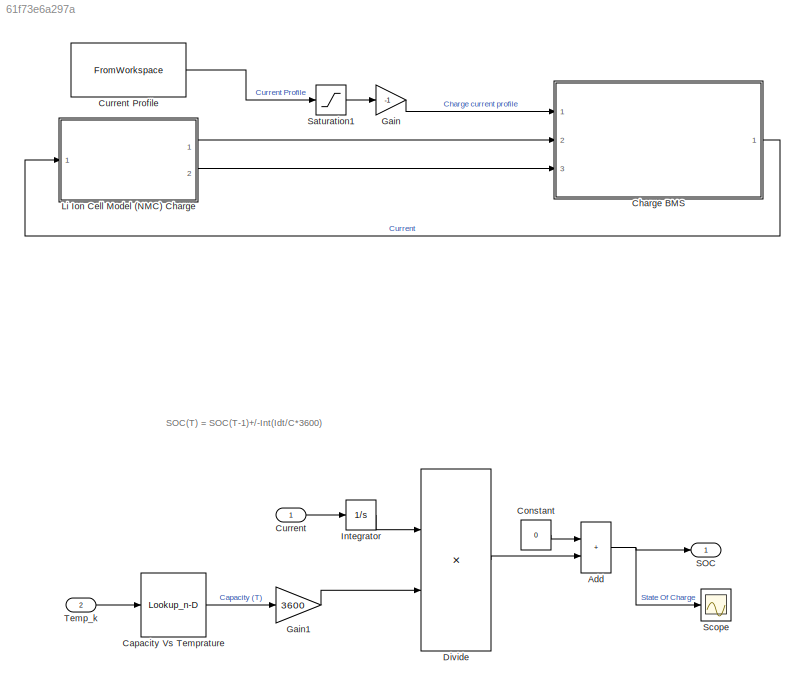
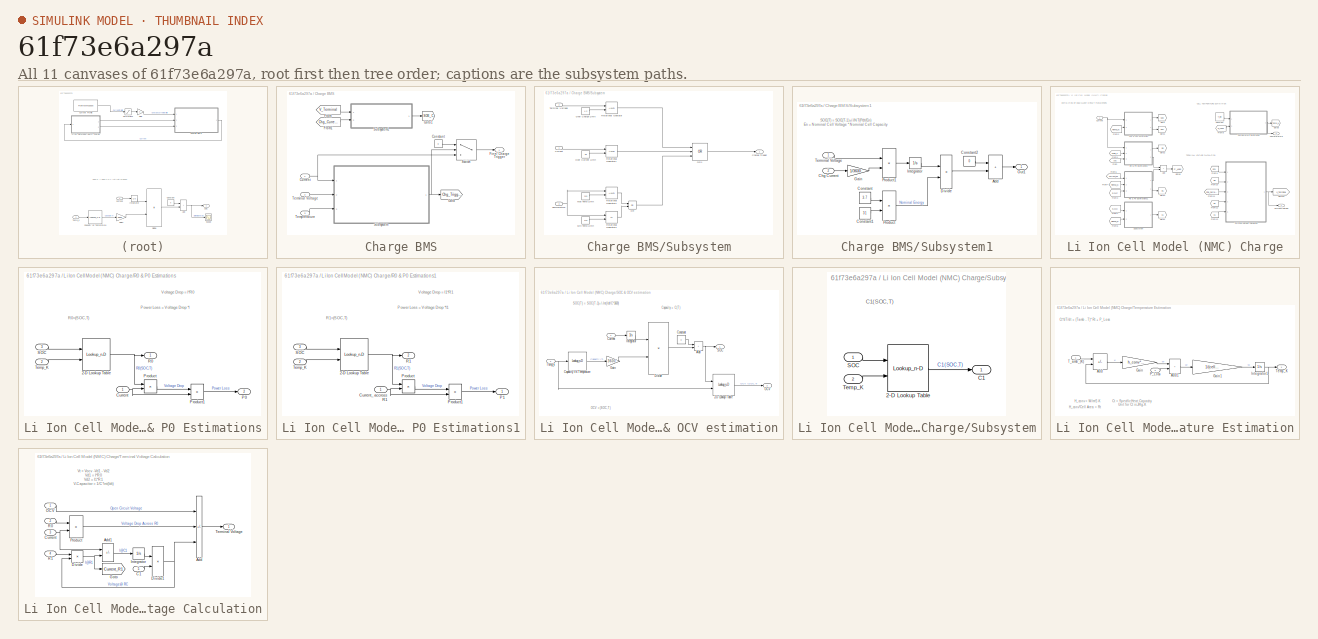
[diagram: thumbnail index - all 11 canvases of the model, root first then tree order]
MODEL slx_61f73e6a297a
KIND model
CONFIG AbsTol = auto
CONFIG EnableMultiTasking = off
CONFIG FixedStep = auto
CONFIG MaxStep = auto
CONFIG MinStep = auto
CONFIG RelTol = 1e-3
CONFIG SampleTimeConstraint = Unconstrained
CONFIG SolverName = VariableStepAuto
CONFIG StartTime = 0.0
CONFIG StopTime = 1180
BLOCK [Sum] Add
  IconShape = rectangular
  Ports = [2, 1]
BLOCK [Lookup_n-D] Capacity Vs Temprature
  BreakpointsForDimension1 = Temperature_LUT
  InputPortMap = u0
  InternalRulePriority = Speed
  NumberOfTableDimensions = 1
  Ports = [1, 1]
  RndMeth = Simplest
  Table = Capacity_LUT
BLOCK [SubSystem] Charge BMS
  Ports = [3, 1]
  RequestExecContextInheritance = off
BLOCK [Constant] Charge BMS/Constant
  Value = 0
BLOCK [Inport] Charge BMS/Current
BLOCK [Outport] Charge BMS/Final Charge Trigger
BLOCK [From] Charge BMS/From
  GotoTag = V_Terminal
  TagVisibility = global
BLOCK [From] Charge BMS/From1
  GotoTag = Chg_Current
  TagVisibility = global
BLOCK [Goto] Charge BMS/Goto
  GotoTag = Chg_Trigger
  TagVisibility = global
BLOCK [Goto] Charge BMS/Goto1
  GotoTag = SOE_C
  TagVisibility = global
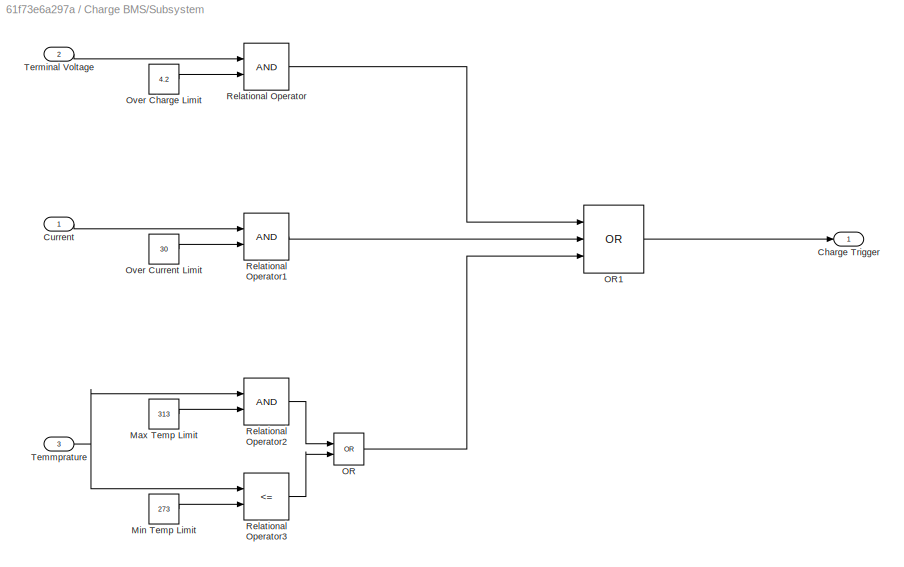
BLOCK [SubSystem] Charge BMS/Subsystem
  Ports = [3, 1]
  RequestExecContextInheritance = off
BLOCK [Outport] Charge BMS/Subsystem/Charge Trigger
BLOCK [Inport] Charge BMS/Subsystem/Current
BLOCK [Constant] Charge BMS/Subsystem/Max Temp Limit
  Value = 313
BLOCK [Constant] Charge BMS/Subsystem/Min Temp Limit
  Value = 273
BLOCK [Logic] Charge BMS/Subsystem/OR
  AllPortsSameDT = off
  IconShape = distinctive
  Operator = OR
  OutDataTypeStr = boolean
  Ports = [2, 1]
BLOCK [Logic] Charge BMS/Subsystem/OR1
  AllPortsSameDT = off
  IconShape = distinctive
  Inputs = 3
  Operator = OR
  OutDataTypeStr = boolean
  Ports = [3, 1]
BLOCK [Constant] Charge BMS/Subsystem/Over Charge Limit
  Value = 4.2
BLOCK [Constant] Charge BMS/Subsystem/Over Current Limit
  Value = 30
BLOCK [RelationalOperator] Charge BMS/Subsystem/Relational Operator
  InputSameDT = off
  OutDataTypeStr = boolean
  Ports = [2, 1]
  RndMeth = Simplest
BLOCK [RelationalOperator] Charge BMS/Subsystem/Relational Operator1
  InputSameDT = off
  OutDataTypeStr = boolean
  Ports = [2, 1]
  RndMeth = Simplest
BLOCK [RelationalOperator] Charge BMS/Subsystem/Relational Operator2
  InputSameDT = off
  OutDataTypeStr = boolean
  Ports = [2, 1]
  RndMeth = Simplest
BLOCK [RelationalOperator] Charge BMS/Subsystem/Relational Operator3
  InputSameDT = off
  Operator = <=
  OutDataTypeStr = boolean
  Ports = [2, 1]
  RndMeth = Simplest
BLOCK [Inport] Charge BMS/Subsystem/Temmprature
  Port = 3
BLOCK [Inport] Charge BMS/Subsystem/Terminal Voltage
  Port = 2
BLOCK [SubSystem] Charge BMS/Subsystem1
  Ports = [2, 1]
  RequestExecContextInheritance = off
BLOCK [Sum] Charge BMS/Subsystem1/Add
  IconShape = rectangular
  Ports = [2, 1]
BLOCK [Inport] Charge BMS/Subsystem1/Chg Current
  Port = 2
BLOCK [Constant] Charge BMS/Subsystem1/Constant
  Value = 3.7
BLOCK [Constant] Charge BMS/Subsystem1/Constant1
  Value = 31
BLOCK [Constant] Charge BMS/Subsystem1/Constant2
  Value = 0
BLOCK [Product] Charge BMS/Subsystem1/Divide
  Inputs = */
  Ports = [2, 1]
BLOCK [Gain] Charge BMS/Subsystem1/Gain
  Gain = 1/3600
BLOCK [Integrator] Charge BMS/Subsystem1/Integrator
  Ports = [1, 1]
BLOCK [Outport] Charge BMS/Subsystem1/Out1
BLOCK [Product] Charge BMS/Subsystem1/Product
  Ports = [2, 1]
BLOCK [Product] Charge BMS/Subsystem1/Product1
  Ports = [2, 1]
BLOCK [Inport] Charge BMS/Subsystem1/Terminal Voltage
BLOCK [Switch] Charge BMS/Switch
  Criteria = u2 ~= 0
  InputSameDT = off
  SaturateOnIntegerOverflow = off
BLOCK [Inport] Charge BMS/Temprerature
  Port = 3
BLOCK [Inport] Charge BMS/Terminal Voltage
  Port = 2
BLOCK [Constant] Constant
  Value = 0
BLOCK [Inport] Current
BLOCK [FromWorkspace] Current Profile
  VariableName = Current_Profile
BLOCK [Product] Divide
  Inputs = */
  Ports = [2, 1]
BLOCK [Gain] Gain
  Gain = -1
BLOCK [Gain] Gain1
  Gain = 3600
BLOCK [Integrator] Integrator
  Ports = [1, 1]
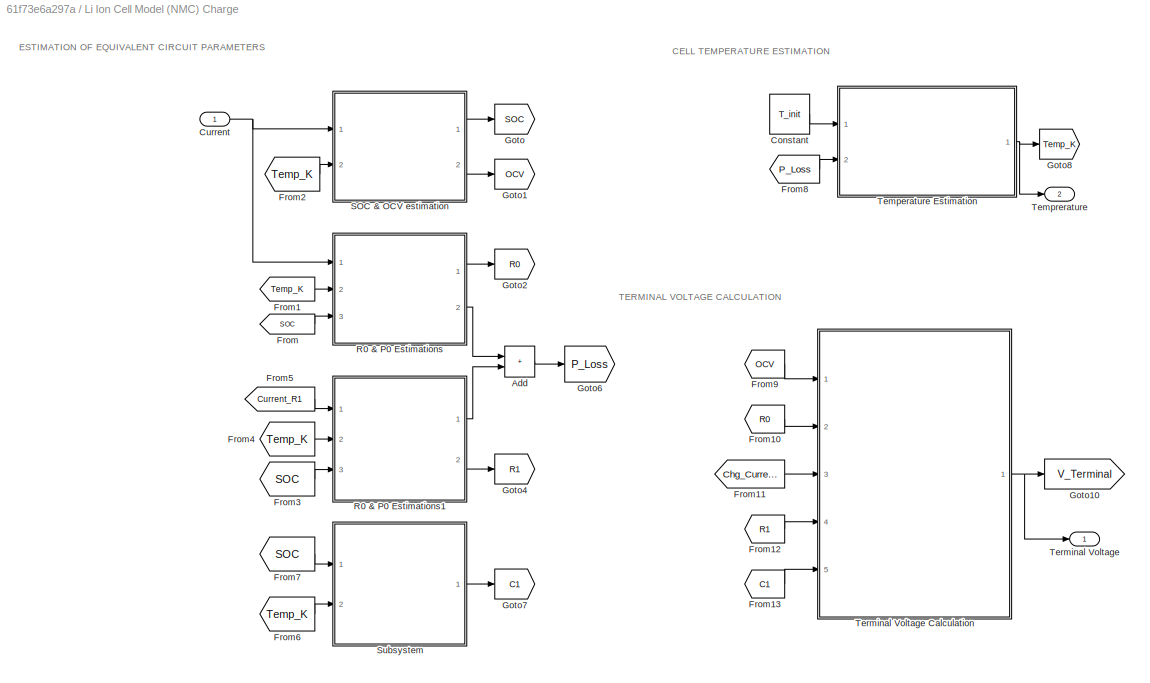
BLOCK [SubSystem] Li Ion Cell Model (NMC) Charge
  Ports = [1, 2]
  RequestExecContextInheritance = off
BLOCK [Sum] Li Ion Cell Model (NMC) Charge/Add
  IconShape = rectangular
  Ports = [2, 1]
BLOCK [Constant] Li Ion Cell Model (NMC) Charge/Constant
  Value = T_init
BLOCK [Inport] Li Ion Cell Model (NMC) Charge/Current
BLOCK [From] Li Ion Cell Model (NMC) Charge/From
  GotoTag = SOC
  TagVisibility = global
BLOCK [From] Li Ion Cell Model (NMC) Charge/From1
  GotoTag = Temp_K
  TagVisibility = global
BLOCK [From] Li Ion Cell Model (NMC) Charge/From10
  GotoTag = R0
  TagVisibility = global
BLOCK [From] Li Ion Cell Model (NMC) Charge/From11
  GotoTag = Chg_Current
  TagVisibility = global
BLOCK [From] Li Ion Cell Model (NMC) Charge/From12
  GotoTag = R1
  TagVisibility = global
BLOCK [From] Li Ion Cell Model (NMC) Charge/From13
  GotoTag = C1
  TagVisibility = global
BLOCK [From] Li Ion Cell Model (NMC) Charge/From2
  GotoTag = Temp_K
  TagVisibility = global
BLOCK [From] Li Ion Cell Model (NMC) Charge/From3
  GotoTag = SOC
  TagVisibility = global
BLOCK [From] Li Ion Cell Model (NMC) Charge/From4
  GotoTag = Temp_K
  TagVisibility = global
BLOCK [From] Li Ion Cell Model (NMC) Charge/From5
  GotoTag = Current_R1
  TagVisibility = global
BLOCK [From] Li Ion Cell Model (NMC) Charge/From6
  GotoTag = Temp_K
  TagVisibility = global
BLOCK [From] Li Ion Cell Model (NMC) Charge/From7
  GotoTag = SOC
  TagVisibility = global
BLOCK [From] Li Ion Cell Model (NMC) Charge/From8
  GotoTag = P_Loss
  TagVisibility = global
BLOCK [From] Li Ion Cell Model (NMC) Charge/From9
  GotoTag = OCV
  TagVisibility = global
BLOCK [Goto] Li Ion Cell Model (NMC) Charge/Goto
  GotoTag = SOC
  TagVisibility = global
BLOCK [Goto] Li Ion Cell Model (NMC) Charge/Goto1
  GotoTag = OCV
  TagVisibility = global
BLOCK [Goto] Li Ion Cell Model (NMC) Charge/Goto10
  GotoTag = V_Terminal
  TagVisibility = global
BLOCK [Goto] Li Ion Cell Model (NMC) Charge/Goto2
  GotoTag = R0
  TagVisibility = global
BLOCK [Goto] Li Ion Cell Model (NMC) Charge/Goto4
  GotoTag = R1
  TagVisibility = global
BLOCK [Goto] Li Ion Cell Model (NMC) Charge/Goto6
  GotoTag = P_Loss
  TagVisibility = global
BLOCK [Goto] Li Ion Cell Model (NMC) Charge/Goto7
  GotoTag = C1
  TagVisibility = global
BLOCK [Goto] Li Ion Cell Model (NMC) Charge/Goto8
  GotoTag = Temp_K
  TagVisibility = global
BLOCK [SubSystem] Li Ion Cell Model (NMC) Charge/R0 & P0 Estimations
  Ports = [3, 2]
  RequestExecContextInheritance = off
BLOCK [Lookup_n-D] Li Ion Cell Model (NMC) Charge/R0 & P0 Estimations/2-D Lookup Table
  BreakpointsForDimension1 = SOC_LUT
  BreakpointsForDimension2 = Temperature_LUT
  InputPortMap = u0,u1
  InternalRulePriority = Speed
  Ports = [2, 1]
  RndMeth = Simplest
  Table = R0_LUT
BLOCK [Inport] Li Ion Cell Model (NMC) Charge/R0 & P0 Estimations/Current
BLOCK [Outport] Li Ion Cell Model (NMC) Charge/R0 & P0 Estimations/P0
  Port = 2
BLOCK [Product] Li Ion Cell Model (NMC) Charge/R0 & P0 Estimations/Product
  Ports = [2, 1]
BLOCK [Product] Li Ion Cell Model (NMC) Charge/R0 & P0 Estimations/Product1
  Ports = [2, 1]
BLOCK [Outport] Li Ion Cell Model (NMC) Charge/R0 & P0 Estimations/R0
BLOCK [Inport] Li Ion Cell Model (NMC) Charge/R0 & P0 Estimations/SOC
  Port = 3
BLOCK [Inport] Li Ion Cell Model (NMC) Charge/R0 & P0 Estimations/Temp_K
  Port = 2
BLOCK [SubSystem] Li Ion Cell Model (NMC) Charge/R0 & P0 Estimations1
  Ports = [3, 2]
  RequestExecContextInheritance = off
BLOCK [Lookup_n-D] Li Ion Cell Model (NMC) Charge/R0 & P0 Estimations1/2-D Lookup Table
  BreakpointsForDimension1 = SOC_LUT
  BreakpointsForDimension2 = Temperature_LUT
  InputPortMap = u0,u1
  InternalRulePriority = Speed
  Ports = [2, 1]
  RndMeth = Simplest
  Table = R1_LUT
BLOCK [Inport] Li Ion Cell Model (NMC) Charge/R0 & P0 Estimations1/Current_ accross R1
BLOCK [Outport] Li Ion Cell Model (NMC) Charge/R0 & P0 Estimations1/P1
BLOCK [Product] Li Ion Cell Model (NMC) Charge/R0 & P0 Estimations1/Product
  Ports = [2, 1]
BLOCK [Product] Li Ion Cell Model (NMC) Charge/R0 & P0 Estimations1/Product1
  Ports = [2, 1]
BLOCK [Outport] Li Ion Cell Model (NMC) Charge/R0 & P0 Estimations1/R1
  Port = 2
BLOCK [Inport] Li Ion Cell Model (NMC) Charge/R0 & P0 Estimations1/SOC
  Port = 3
BLOCK [Inport] Li Ion Cell Model (NMC) Charge/R0 & P0 Estimations1/Temp_K
  Port = 2
BLOCK [SubSystem] Li Ion Cell Model (NMC) Charge/SOC & OCV estimation
  Ports = [2, 2]
  RequestExecContextInheritance = off
BLOCK [Lookup_n-D] Li Ion Cell Model (NMC) Charge/SOC & OCV estimation/2-D Lookup Table
  BreakpointsForDimension1 = SOC_LUT
  BreakpointsForDimension2 = Temperature_LUT
  InputPortMap = u0,u1
  InternalRulePriority = Speed
  Ports = [2, 1]
  RndMeth = Simplest
  Table = Em_LUT
BLOCK [Sum] Li Ion Cell Model (NMC) Charge/SOC & OCV estimation/Add
  IconShape = rectangular
  Ports = [2, 1]
BLOCK [Lookup_n-D] Li Ion Cell Model (NMC) Charge/SOC & OCV estimation/Capacity Vs Temprature
  BreakpointsForDimension1 = Temperature_LUT
  InputPortMap = u0
  InternalRulePriority = Speed
  NumberOfTableDimensions = 1
  Ports = [1, 1]
  RndMeth = Simplest
  Table = Capacity_LUT
BLOCK [Constant] Li Ion Cell Model (NMC) Charge/SOC & OCV estimation/Constant
  Value = 0
BLOCK [Inport] Li Ion Cell Model (NMC) Charge/SOC & OCV estimation/Current
BLOCK [Product] Li Ion Cell Model (NMC) Charge/SOC & OCV estimation/Divide
  Inputs = */
  Ports = [2, 1]
BLOCK [Gain] Li Ion Cell Model (NMC) Charge/SOC & OCV estimation/Gain
  Gain = 3600
BLOCK [Integrator] Li Ion Cell Model (NMC) Charge/SOC & OCV estimation/Integrator
  Ports = [1, 1]
BLOCK [Outport] Li Ion Cell Model (NMC) Charge/SOC & OCV estimation/OCV
  Port = 2
BLOCK [Outport] Li Ion Cell Model (NMC) Charge/SOC & OCV estimation/SOC
BLOCK [Inport] Li Ion Cell Model (NMC) Charge/SOC & OCV estimation/Temp_k
  Port = 2
BLOCK [SubSystem] Li Ion Cell Model (NMC) Charge/Subsystem
  Ports = [2, 1]
  RequestExecContextInheritance = off
BLOCK [Lookup_n-D] Li Ion Cell Model (NMC) Charge/Subsystem/2-D Lookup Table
  BreakpointsForDimension1 = SOC_LUT
  BreakpointsForDimension2 = Temperature_LUT
  InputPortMap = u0,u1
  InternalRulePriority = Speed
  Ports = [2, 1]
  RndMeth = Simplest
  Table = C1_LUT
BLOCK [Outport] Li Ion Cell Model (NMC) Charge/Subsystem/C1
BLOCK [Inport] Li Ion Cell Model (NMC) Charge/Subsystem/SOC
BLOCK [Inport] Li Ion Cell Model (NMC) Charge/Subsystem/Temp_K
  Port = 2
BLOCK [SubSystem] Li Ion Cell Model (NMC) Charge/Temperature Estimation
  Ports = [2, 1]
  RequestExecContextInheritance = off
BLOCK [Sum] Li Ion Cell Model (NMC) Charge/Temperature Estimation/Add
  IconShape = rectangular
  Inputs = +-
  Ports = [2, 1]
BLOCK [Sum] Li Ion Cell Model (NMC) Charge/Temperature Estimation/Add1
  IconShape = rectangular
  Ports = [2, 1]
BLOCK [Gain] Li Ion Cell Model (NMC) Charge/Temperature Estimation/Gain
  Gain = h_conv*cell_area
BLOCK [Gain] Li Ion Cell Model (NMC) Charge/Temperature Estimation/Gain1
  Gain = 1/(cell_Cp_heat*cell_mass)
BLOCK [Integrator] Li Ion Cell Model (NMC) Charge/Temperature Estimation/Integrator1
  InitialCondition = 293.15
  Ports = [1, 1]
BLOCK [Inport] Li Ion Cell Model (NMC) Charge/Temperature Estimation/P_Loss
  Port = 2
BLOCK [Inport] Li Ion Cell Model (NMC) Charge/Temperature Estimation/T_amb_(K)
BLOCK [Outport] Li Ion Cell Model (NMC) Charge/Temperature Estimation/Temp_K
BLOCK [Outport] Li Ion Cell Model (NMC) Charge/Temprerature
  Port = 2
BLOCK [Outport] Li Ion Cell Model (NMC) Charge/Terminal Voltage
BLOCK [SubSystem] Li Ion Cell Model (NMC) Charge/Terminal Voltage Calculation
  Ports = [5, 1]
  RequestExecContextInheritance = off
BLOCK [Sum] Li Ion Cell Model (NMC) Charge/Terminal Voltage Calculation/Add
  IconShape = rectangular
  Inputs = +--
  Ports = [3, 1]
BLOCK [Sum] Li Ion Cell Model (NMC) Charge/Terminal Voltage Calculation/Add1
  IconShape = rectangular
  Inputs = +-
  Ports = [2, 1]
BLOCK [Inport] Li Ion Cell Model (NMC) Charge/Terminal Voltage Calculation/C1
  Port = 5
BLOCK [Inport] Li Ion Cell Model (NMC) Charge/Terminal Voltage Calculation/Current
  Port = 3
BLOCK [Product] Li Ion Cell Model (NMC) Charge/Terminal Voltage Calculation/Divide
  Inputs = /*
  Ports = [2, 1]
BLOCK [Product] Li Ion Cell Model (NMC) Charge/Terminal Voltage Calculation/Divide1
  Inputs = */
  Ports = [2, 1]
BLOCK [Goto] Li Ion Cell Model (NMC) Charge/Terminal Voltage Calculation/Goto
  GotoTag = Current_R1
  TagVisibility = global
BLOCK [Integrator] Li Ion Cell Model (NMC) Charge/Terminal Voltage Calculation/Integrator
  Ports = [1, 1]
BLOCK [Inport] Li Ion Cell Model (NMC) Charge/Terminal Voltage Calculation/OCV
BLOCK [Product] Li Ion Cell Model (NMC) Charge/Terminal Voltage Calculation/Product
  Ports = [2, 1]
BLOCK [Inport] Li Ion Cell Model (NMC) Charge/Terminal Voltage Calculation/R0
  Port = 2
BLOCK [Inport] Li Ion Cell Model (NMC) Charge/Terminal Voltage Calculation/R1
  Port = 4
BLOCK [Outport] Li Ion Cell Model (NMC) Charge/Terminal Voltage Calculation/Terminal Voltage
BLOCK [Outport] SOC
BLOCK [Saturate] Saturation1
  LowerLimit = -inf
  UpperLimit = 0
BLOCK [Scope] Scope
  Floating = off
  NumInputPorts = 1
  Ports = [1]
  ScopeSpecificationString = Simulink.scopes.TimeScopeBlockCfg('CurrentConfiguration', extmgr.ConfigurationSet(extmgr.Configuration('Core','General UI',true),extmgr.Configuration('Core','Source UI',true),extmgr.Configuration('Sources','WiredSimulink',true),extmgr.Configuration('Visuals','Time Domain',true),extmgr.Configuration('Tools','Plot Navigation',true),extmgr.Configuration('Tools','Measurements',true)),'Version','2021a'...<+1ch>
BLOCK [Inport] Temp_k
  Port = 2
ANNOTATION (root): SOC(T) = SOC(T-1)+/-Int(Idt/C*3600)
ANNOTATION Charge BMS/Subsystem1: SOE(T) = SOE(T-1)+/-INT(Pdt/En) En = Nominal Cell Voltage * Nominal Cell Capacity
ANNOTATION Li Ion Cell Model (NMC) Charge: CELL TEMPERATURE ESTIMATION
ANNOTATION Li Ion Cell Model (NMC) Charge: ESTIMATION OF EQUIVALENT CIRCUIT PARAMETERS
ANNOTATION Li Ion Cell Model (NMC) Charge: TERMINAL VOLTAGE CALCULATION
ANNOTATION Li Ion Cell Model (NMC) Charge/R0 & P0 Estimations: Power Loss = Voltage Drop *I
ANNOTATION Li Ion Cell Model (NMC) Charge/R0 & P0 Estimations: R0=(SOC,T)
ANNOTATION Li Ion Cell Model (NMC) Charge/R0 & P0 Estimations: Voltage Drop = I*R0
ANNOTATION Li Ion Cell Model (NMC) Charge/R0 & P0 Estimations1: Power Loss = Voltage Drop *I1
ANNOTATION Li Ion Cell Model (NMC) Charge/R0 & P0 Estimations1: R1=(SOC,T)
ANNOTATION Li Ion Cell Model (NMC) Charge/R0 & P0 Estimations1: Voltage Drop = I1*R1
ANNOTATION Li Ion Cell Model (NMC) Charge/SOC & OCV estimation: OCV =( SOC ,T)
ANNOTATION Li Ion Cell Model (NMC) Charge/SOC & OCV estimation: SOC(T) = SOC(T-1)+/-Int(Idt/C*3600)
ANNOTATION Li Ion Cell Model (NMC) Charge/SOC & OCV estimation: Capacity = C(T)
ANNOTATION Li Ion Cell Model (NMC) Charge/Subsystem: C1(SOC,T)
ANNOTATION Li Ion Cell Model (NMC) Charge/Temperature Estimation: Ct*dT/dt = (Tamb - T)* Rt + P_Loss
ANNOTATION Li Ion Cell Model (NMC) Charge/Temperature Estimation: Ct = Specific Heat Capacity Unit for Ct is J/Kg-K
ANNOTATION Li Ion Cell Model (NMC) Charge/Temperature Estimation: H_conv = W/m^2-K
ANNOTATION Li Ion Cell Model (NMC) Charge/Temperature Estimation: H_conv*Cell Area = Rt
ANNOTATION Li Ion Cell Model (NMC) Charge/Terminal Voltage Calculation: Vt = Vocv -Vd1 - Vd2 Vd1 = I*R0 Vd2 = I1*R1 V-Capacitor = 1/C*int(Idt)
NET Add:1 -> SOC:1, Scope:1
LINE Capacity Vs Temprature:1 -> Gain1:1
LINE Charge BMS/Constant:1 -> Charge BMS/Switch:1
NET Charge BMS/Current:1 -> Charge BMS/Subsystem:1, Charge BMS/Switch:3
LINE Charge BMS/From1:1 -> Charge BMS/Subsystem1:2
LINE Charge BMS/From:1 -> Charge BMS/Subsystem1:1
LINE Charge BMS/Subsystem/Current:1 -> Charge BMS/Subsystem/Relational Operator1:1
LINE Charge BMS/Subsystem/Max Temp Limit:1 -> Charge BMS/Subsystem/Relational Operator2:2
LINE Charge BMS/Subsystem/Min Temp Limit:1 -> Charge BMS/Subsystem/Relational Operator3:2
LINE Charge BMS/Subsystem/OR1:1 -> Charge BMS/Subsystem/Charge Trigger:1
LINE Charge BMS/Subsystem/OR:1 -> Charge BMS/Subsystem/OR1:3
LINE Charge BMS/Subsystem/Over Charge Limit:1 -> Charge BMS/Subsystem/Relational Operator:2
LINE Charge BMS/Subsystem/Over Current Limit:1 -> Charge BMS/Subsystem/Relational Operator1:2
LINE Charge BMS/Subsystem/Relational Operator1:1 -> Charge BMS/Subsystem/OR1:2
LINE Charge BMS/Subsystem/Relational Operator2:1 -> Charge BMS/Subsystem/OR:1
LINE Charge BMS/Subsystem/Relational Operator3:1 -> Charge BMS/Subsystem/OR:2
LINE Charge BMS/Subsystem/Relational Operator:1 -> Charge BMS/Subsystem/OR1:1
NET Charge BMS/Subsystem/Temmprature:1 -> Charge BMS/Subsystem/Relational Operator2:1, Charge BMS/Subsystem/Relational Operator3:1
LINE Charge BMS/Subsystem/Terminal Voltage:1 -> Charge BMS/Subsystem/Relational Operator:1
LINE Charge BMS/Subsystem1/Add:1 -> Charge BMS/Subsystem1/Out1:1
LINE Charge BMS/Subsystem1/Chg Current:1 -> Charge BMS/Subsystem1/Gain:1
LINE Charge BMS/Subsystem1/Constant1:1 -> Charge BMS/Subsystem1/Product:2
LINE Charge BMS/Subsystem1/Constant2:1 -> Charge BMS/Subsystem1/Add:1
LINE Charge BMS/Subsystem1/Constant:1 -> Charge BMS/Subsystem1/Product:1
LINE Charge BMS/Subsystem1/Divide:1 -> Charge BMS/Subsystem1/Add:2
LINE Charge BMS/Subsystem1/Gain:1 -> Charge BMS/Subsystem1/Product1:2
LINE Charge BMS/Subsystem1/Integrator:1 -> Charge BMS/Subsystem1/Divide:1
LINE Charge BMS/Subsystem1/Product1:1 -> Charge BMS/Subsystem1/Integrator:1
LINE Charge BMS/Subsystem1/Product:1 -> Charge BMS/Subsystem1/Divide:2
LINE Charge BMS/Subsystem1/Terminal Voltage:1 -> Charge BMS/Subsystem1/Product1:1
LINE Charge BMS/Subsystem1:1 -> Charge BMS/Goto1:1
NET Charge BMS/Subsystem:1 -> Charge BMS/Goto:1, Charge BMS/Switch:2
LINE Charge BMS/Switch:1 -> Charge BMS/Final Charge Trigger:1
LINE Charge BMS/Temprerature:1 -> Charge BMS/Subsystem:3
LINE Charge BMS/Terminal Voltage:1 -> Charge BMS/Subsystem:2
LINE Charge BMS:1 -> Li Ion Cell Model (NMC) Charge:1
LINE Constant:1 -> Add:1
LINE Current Profile:1 -> Saturation1:1
LINE Current:1 -> Integrator:1
LINE Divide:1 -> Add:2
LINE Gain1:1 -> Divide:2
LINE Gain:1 -> Charge BMS:1
LINE Integrator:1 -> Divide:1
LINE Li Ion Cell Model (NMC) Charge/Add:1 -> Li Ion Cell Model (NMC) Charge/Goto6:1
LINE Li Ion Cell Model (NMC) Charge/Constant:1 -> Li Ion Cell Model (NMC) Charge/Temperature Estimation:1
NET Li Ion Cell Model (NMC) Charge/Current:1 -> Li Ion Cell Model (NMC) Charge/R0 & P0 Estimations:1, Li Ion Cell Model (NMC) Charge/SOC & OCV estimation:1
LINE Li Ion Cell Model (NMC) Charge/From10:1 -> Li Ion Cell Model (NMC) Charge/Terminal Voltage Calculation:2
LINE Li Ion Cell Model (NMC) Charge/From11:1 -> Li Ion Cell Model (NMC) Charge/Terminal Voltage Calculation:3
LINE Li Ion Cell Model (NMC) Charge/From12:1 -> Li Ion Cell Model (NMC) Charge/Terminal Voltage Calculation:4
LINE Li Ion Cell Model (NMC) Charge/From13:1 -> Li Ion Cell Model (NMC) Charge/Terminal Voltage Calculation:5
LINE Li Ion Cell Model (NMC) Charge/From1:1 -> Li Ion Cell Model (NMC) Charge/R0 & P0 Estimations:2
LINE Li Ion Cell Model (NMC) Charge/From2:1 -> Li Ion Cell Model (NMC) Charge/SOC & OCV estimation:2
LINE Li Ion Cell Model (NMC) Charge/From3:1 -> Li Ion Cell Model (NMC) Charge/R0 & P0 Estimations1:3
LINE Li Ion Cell Model (NMC) Charge/From4:1 -> Li Ion Cell Model (NMC) Charge/R0 & P0 Estimations1:2
LINE Li Ion Cell Model (NMC) Charge/From5:1 -> Li Ion Cell Model (NMC) Charge/R0 & P0 Estimations1:1
LINE Li Ion Cell Model (NMC) Charge/From6:1 -> Li Ion Cell Model (NMC) Charge/Subsystem:2
LINE Li Ion Cell Model (NMC) Charge/From7:1 -> Li Ion Cell Model (NMC) Charge/Subsystem:1
LINE Li Ion Cell Model (NMC) Charge/From8:1 -> Li Ion Cell Model (NMC) Charge/Temperature Estimation:2
LINE Li Ion Cell Model (NMC) Charge/From9:1 -> Li Ion Cell Model (NMC) Charge/Terminal Voltage Calculation:1
LINE Li Ion Cell Model (NMC) Charge/From:1 -> Li Ion Cell Model (NMC) Charge/R0 & P0 Estimations:3
NET Li Ion Cell Model (NMC) Charge/R0 & P0 Estimations/2-D Lookup Table:1 -> Li Ion Cell Model (NMC) Charge/R0 & P0 Estimations/Product:1, Li Ion Cell Model (NMC) Charge/R0 & P0 Estimations/R0:1
NET Li Ion Cell Model (NMC) Charge/R0 & P0 Estimations/Current:1 -> Li Ion Cell Model (NMC) Charge/R0 & P0 Estimations/Product1:2, Li Ion Cell Model (NMC) Charge/R0 & P0 Estimations/Product:2
LINE Li Ion Cell Model (NMC) Charge/R0 & P0 Estimations/Product1:1 -> Li Ion Cell Model (NMC) Charge/R0 & P0 Estimations/P0:1
LINE Li Ion Cell Model (NMC) Charge/R0 & P0 Estimations/Product:1 -> Li Ion Cell Model (NMC) Charge/R0 & P0 Estimations/Product1:1
LINE Li Ion Cell Model (NMC) Charge/R0 & P0 Estimations/SOC:1 -> Li Ion Cell Model (NMC) Charge/R0 & P0 Estimations/2-D Lookup Table:1
LINE Li Ion Cell Model (NMC) Charge/R0 & P0 Estimations/Temp_K:1 -> Li Ion Cell Model (NMC) Charge/R0 & P0 Estimations/2-D Lookup Table:2
NET Li Ion Cell Model (NMC) Charge/R0 & P0 Estimations1/2-D Lookup Table:1 -> Li Ion Cell Model (NMC) Charge/R0 & P0 Estimations1/Product:1, Li Ion Cell Model (NMC) Charge/R0 & P0 Estimations1/R1:1
NET Li Ion Cell Model (NMC) Charge/R0 & P0 Estimations1/Current_ accross R1:1 -> Li Ion Cell Model (NMC) Charge/R0 & P0 Estimations1/Product1:2, Li Ion Cell Model (NMC) Charge/R0 & P0 Estimations1/Product:2
LINE Li Ion Cell Model (NMC) Charge/R0 & P0 Estimations1/Product1:1 -> Li Ion Cell Model (NMC) Charge/R0 & P0 Estimations1/P1:1
LINE Li Ion Cell Model (NMC) Charge/R0 & P0 Estimations1/Product:1 -> Li Ion Cell Model (NMC) Charge/R0 & P0 Estimations1/Product1:1
LINE Li Ion Cell Model (NMC) Charge/R0 & P0 Estimations1/SOC:1 -> Li Ion Cell Model (NMC) Charge/R0 & P0 Estimations1/2-D Lookup Table:1
LINE Li Ion Cell Model (NMC) Charge/R0 & P0 Estimations1/Temp_K:1 -> Li Ion Cell Model (NMC) Charge/R0 & P0 Estimations1/2-D Lookup Table:2
LINE Li Ion Cell Model (NMC) Charge/R0 & P0 Estimations1:1 -> Li Ion Cell Model (NMC) Charge/Add:2
LINE Li Ion Cell Model (NMC) Charge/R0 & P0 Estimations1:2 -> Li Ion Cell Model (NMC) Charge/Goto4:1
LINE Li Ion Cell Model (NMC) Charge/R0 & P0 Estimations:1 -> Li Ion Cell Model (NMC) Charge/Goto2:1
LINE Li Ion Cell Model (NMC) Charge/R0 & P0 Estimations:2 -> Li Ion Cell Model (NMC) Charge/Add:1
LINE Li Ion Cell Model (NMC) Charge/SOC & OCV estimation/2-D Lookup Table:1 -> Li Ion Cell Model (NMC) Charge/SOC & OCV estimation/OCV:1
NET Li Ion Cell Model (NMC) Charge/SOC & OCV estimation/Add:1 -> Li Ion Cell Model (NMC) Charge/SOC & OCV estimation/2-D Lookup Table:1, Li Ion Cell Model (NMC) Charge/SOC & OCV estimation/SOC:1
LINE Li Ion Cell Model (NMC) Charge/SOC & OCV estimation/Capacity Vs Temprature:1 -> Li Ion Cell Model (NMC) Charge/SOC & OCV estimation/Gain:1
LINE Li Ion Cell Model (NMC) Charge/SOC & OCV estimation/Constant:1 -> Li Ion Cell Model (NMC) Charge/SOC & OCV estimation/Add:1
LINE Li Ion Cell Model (NMC) Charge/SOC & OCV estimation/Current:1 -> Li Ion Cell Model (NMC) Charge/SOC & OCV estimation/Integrator:1
LINE Li Ion Cell Model (NMC) Charge/SOC & OCV estimation/Divide:1 -> Li Ion Cell Model (NMC) Charge/SOC & OCV estimation/Add:2
LINE Li Ion Cell Model (NMC) Charge/SOC & OCV estimation/Gain:1 -> Li Ion Cell Model (NMC) Charge/SOC & OCV estimation/Divide:2
LINE Li Ion Cell Model (NMC) Charge/SOC & OCV estimation/Integrator:1 -> Li Ion Cell Model (NMC) Charge/SOC & OCV estimation/Divide:1
NET Li Ion Cell Model (NMC) Charge/SOC & OCV estimation/Temp_k:1 -> Li Ion Cell Model (NMC) Charge/SOC & OCV estimation/2-D Lookup Table:2, Li Ion Cell Model (NMC) Charge/SOC & OCV estimation/Capacity Vs Temprature:1
LINE Li Ion Cell Model (NMC) Charge/SOC & OCV estimation:1 -> Li Ion Cell Model (NMC) Charge/Goto:1
LINE Li Ion Cell Model (NMC) Charge/SOC & OCV estimation:2 -> Li Ion Cell Model (NMC) Charge/Goto1:1
LINE Li Ion Cell Model (NMC) Charge/Subsystem/2-D Lookup Table:1 -> Li Ion Cell Model (NMC) Charge/Subsystem/C1:1
LINE Li Ion Cell Model (NMC) Charge/Subsystem/SOC:1 -> Li Ion Cell Model (NMC) Charge/Subsystem/2-D Lookup Table:1
LINE Li Ion Cell Model (NMC) Charge/Subsystem/Temp_K:1 -> Li Ion Cell Model (NMC) Charge/Subsystem/2-D Lookup Table:2
LINE Li Ion Cell Model (NMC) Charge/Subsystem:1 -> Li Ion Cell Model (NMC) Charge/Goto7:1
LINE Li Ion Cell Model (NMC) Charge/Temperature Estimation/Add1:1 -> Li Ion Cell Model (NMC) Charge/Temperature Estimation/Gain1:1
LINE Li Ion Cell Model (NMC) Charge/Temperature Estimation/Add:1 -> Li Ion Cell Model (NMC) Charge/Temperature Estimation/Gain:1
LINE Li Ion Cell Model (NMC) Charge/Temperature Estimation/Gain1:1 -> Li Ion Cell Model (NMC) Charge/Temperature Estimation/Integrator1:1
LINE Li Ion Cell Model (NMC) Charge/Temperature Estimation/Gain:1 -> Li Ion Cell Model (NMC) Charge/Temperature Estimation/Add1:1
NET Li Ion Cell Model (NMC) Charge/Temperature Estimation/Integrator1:1 -> Li Ion Cell Model (NMC) Charge/Temperature Estimation/Add:2, Li Ion Cell Model (NMC) Charge/Temperature Estimation/Temp_K:1
LINE Li Ion Cell Model (NMC) Charge/Temperature Estimation/P_Loss:1 -> Li Ion Cell Model (NMC) Charge/Temperature Estimation/Add1:2
LINE Li Ion Cell Model (NMC) Charge/Temperature Estimation/T_amb_(K):1 -> Li Ion Cell Model (NMC) Charge/Temperature Estimation/Add:1
NET Li Ion Cell Model (NMC) Charge/Temperature Estimation:1 -> Li Ion Cell Model (NMC) Charge/Goto8:1, Li Ion Cell Model (NMC) Charge/Temprerature:1
LINE Li Ion Cell Model (NMC) Charge/Terminal Voltage Calculation/Add1:1 -> Li Ion Cell Model (NMC) Charge/Terminal Voltage Calculation/Integrator:1
LINE Li Ion Cell Model (NMC) Charge/Terminal Voltage Calculation/Add:1 -> Li Ion Cell Model (NMC) Charge/Terminal Voltage Calculation/Terminal Voltage:1
LINE Li Ion Cell Model (NMC) Charge/Terminal Voltage Calculation/C1:1 -> Li Ion Cell Model (NMC) Charge/Terminal Voltage Calculation/Divide1:2
NET Li Ion Cell Model (NMC) Charge/Terminal Voltage Calculation/Current:1 -> Li Ion Cell Model (NMC) Charge/Terminal Voltage Calculation/Add1:1, Li Ion Cell Model (NMC) Charge/Terminal Voltage Calculation/Product:2
NET Li Ion Cell Model (NMC) Charge/Terminal Voltage Calculation/Divide1:1 -> Li Ion Cell Model (NMC) Charge/Terminal Voltage Calculation/Add:3, Li Ion Cell Model (NMC) Charge/Terminal Voltage Calculation/Divide:2
NET Li Ion Cell Model (NMC) Charge/Terminal Voltage Calculation/Divide:1 -> Li Ion Cell Model (NMC) Charge/Terminal Voltage Calculation/Add1:2, Li Ion Cell Model (NMC) Charge/Terminal Voltage Calculation/Goto:1
LINE Li Ion Cell Model (NMC) Charge/Terminal Voltage Calculation/Integrator:1 -> Li Ion Cell Model (NMC) Charge/Terminal Voltage Calculation/Divide1:1
LINE Li Ion Cell Model (NMC) Charge/Terminal Voltage Calculation/OCV:1 -> Li Ion Cell Model (NMC) Charge/Terminal Voltage Calculation/Add:1
LINE Li Ion Cell Model (NMC) Charge/Terminal Voltage Calculation/Product:1 -> Li Ion Cell Model (NMC) Charge/Terminal Voltage Calculation/Add:2
LINE Li Ion Cell Model (NMC) Charge/Terminal Voltage Calculation/R0:1 -> Li Ion Cell Model (NMC) Charge/Terminal Voltage Calculation/Product:1
LINE Li Ion Cell Model (NMC) Charge/Terminal Voltage Calculation/R1:1 -> Li Ion Cell Model (NMC) Charge/Terminal Voltage Calculation/Divide:1
NET Li Ion Cell Model (NMC) Charge/Terminal Voltage Calculation:1 -> Li Ion Cell Model (NMC) Charge/Goto10:1, Li Ion Cell Model (NMC) Charge/Terminal Voltage:1
LINE Li Ion Cell Model (NMC) Charge:1 -> Charge BMS:2
LINE Li Ion Cell Model (NMC) Charge:2 -> Charge BMS:3
LINE Saturation1:1 -> Gain:1
LINE Temp_k:1 -> Capacity Vs Temprature:1
note: NET lines group one-source signal fan-out (src -> all destinations, sorted); 1:1 wires keep LINE
